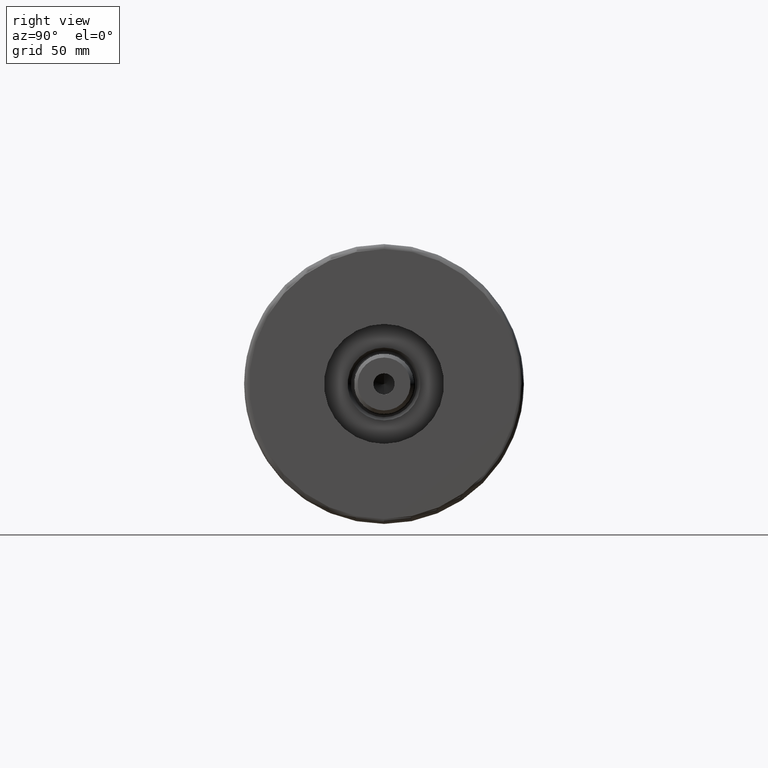
[diagram: clean part render]
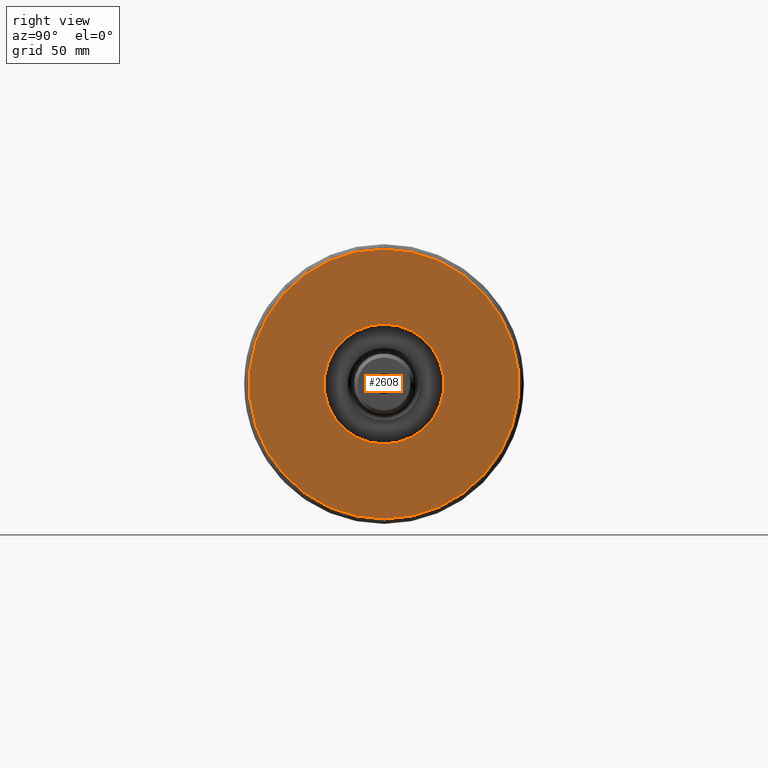
[diagram: same view with one face highlighted and labeled with its STEP entity id]
A machine part, right view. The second image highlights one B-rep face of the part: STEP entity #2608.
In plain terms, the highlighted planar face has unit normal (1, 0, -0).
Its self-contained STEP definition (entity closure, byte-faithful):
#58 = DIRECTION ( 'NONE',  ( 1.000000000000000000, 0.000000000000000000, 0.000000000000000000 ) ) ;
#129 = CIRCLE ( 'NONE', #517, 54.00000000000000000 ) ;
#212 = AXIS2_PLACEMENT_3D ( 'NONE', #2614, #722, #747 ) ;
#279 = AXIS2_PLACEMENT_3D ( 'NONE', #1774, #3275, #299 ) ;
#299 = DIRECTION ( 'NONE',  ( 1.000000000000000000, 0.000000000000000000, -0.000000000000000000 ) ) ;
#321 = DIRECTION ( 'NONE',  ( 1.000000000000000000, 0.000000000000000000, 0.000000000000000000 ) ) ;
#517 = AXIS2_PLACEMENT_3D ( 'NONE', #1217, #2054, #58 ) ;
#633 = FACE_BOUND ( 'NONE', #4138, .T. ) ;
#679 = EDGE_CURVE ( 'NONE', #1005, #725, #1844, .T. ) ;
#722 = DIRECTION ( 'NONE',  ( 0.000000000000000000, 0.000000000000000000, 1.000000000000000000 ) ) ;
#725 = VERTEX_POINT ( 'NONE', #1050 ) ;
#747 = DIRECTION ( 'NONE',  ( 1.000000000000000000, 0.000000000000000000, 0.000000000000000000 ) ) ;
#763 = ORIENTED_EDGE ( 'NONE', *, *, #4505, .T. ) ;
#815 = CARTESIAN_POINT ( 'NONE',  ( -24.00000000000000355, 2.939152317953648289E-15, 32.00000000000000000 ) ) ;
#940 = ORIENTED_EDGE ( 'NONE', *, *, #2282, .T. ) ;
#1005 = VERTEX_POINT ( 'NONE', #815 ) ;
#1028 = FACE_OUTER_BOUND ( 'NONE', #2580, .T. ) ;
#1050 = CARTESIAN_POINT ( 'NONE',  ( 24.00000000000000355, 0.000000000000000000, 32.00000000000000000 ) ) ;
#1076 = AXIS2_PLACEMENT_3D ( 'NONE', #4134, #1861, #2204 ) ;
#1147 = CIRCLE ( 'NONE', #1076, 54.00000000000000000 ) ;
#1217 = CARTESIAN_POINT ( 'NONE',  ( 0.000000000000000000, 0.000000000000000000, 32.00000000000000000 ) ) ;
#1338 = VERTEX_POINT ( 'NONE', #2967 ) ;
#1499 = ORIENTED_EDGE ( 'NONE', *, *, #4409, .F. ) ;
#1774 = CARTESIAN_POINT ( 'NONE',  ( 0.000000000000000000, 0.000000000000000000, 32.00000000000000000 ) ) ;
#1844 = CIRCLE ( 'NONE', #2228, 24.00000000000000355 ) ;
#1861 = DIRECTION ( 'NONE',  ( 0.000000000000000000, 0.000000000000000000, 1.000000000000000000 ) ) ;
#2054 = DIRECTION ( 'NONE',  ( 0.000000000000000000, 0.000000000000000000, 1.000000000000000000 ) ) ;
#2142 = PLANE ( 'NONE',  #279 ) ;
#2204 = DIRECTION ( 'NONE',  ( 1.000000000000000000, 0.000000000000000000, 0.000000000000000000 ) ) ;
#2228 = AXIS2_PLACEMENT_3D ( 'NONE', #3717, #2532, #321 ) ;
#2282 = EDGE_CURVE ( 'NONE', #3790, #1338, #129, .T. ) ;
#2532 = DIRECTION ( 'NONE',  ( 0.000000000000000000, 0.000000000000000000, 1.000000000000000000 ) ) ;
#2580 = EDGE_LOOP ( 'NONE', ( #940, #763 ) ) ;
#2608 = ADVANCED_FACE ( 'NONE', ( #1028, #633 ), #2142, .T. ) ;
#2614 = CARTESIAN_POINT ( 'NONE',  ( 0.000000000000000000, 0.000000000000000000, 32.00000000000000000 ) ) ;
#2873 = CIRCLE ( 'NONE', #212, 24.00000000000000355 ) ;
#2888 = CARTESIAN_POINT ( 'NONE',  ( 54.00000000000000000, 0.000000000000000000, 32.00000000000000000 ) ) ;
#2967 = CARTESIAN_POINT ( 'NONE',  ( -54.00000000000000000, 6.735557395310443404E-15, 32.00000000000000000 ) ) ;
#3275 = DIRECTION ( 'NONE',  ( 0.000000000000000000, 0.000000000000000000, 1.000000000000000000 ) ) ;
#3717 = CARTESIAN_POINT ( 'NONE',  ( 0.000000000000000000, 0.000000000000000000, 32.00000000000000000 ) ) ;
#3772 = ORIENTED_EDGE ( 'NONE', *, *, #679, .F. ) ;
#3790 = VERTEX_POINT ( 'NONE', #2888 ) ;
#4134 = CARTESIAN_POINT ( 'NONE',  ( 0.000000000000000000, 0.000000000000000000, 32.00000000000000000 ) ) ;
#4138 = EDGE_LOOP ( 'NONE', ( #1499, #3772 ) ) ;
#4409 = EDGE_CURVE ( 'NONE', #725, #1005, #2873, .T. ) ;
#4505 = EDGE_CURVE ( 'NONE', #1338, #3790, #1147, .T. ) ;